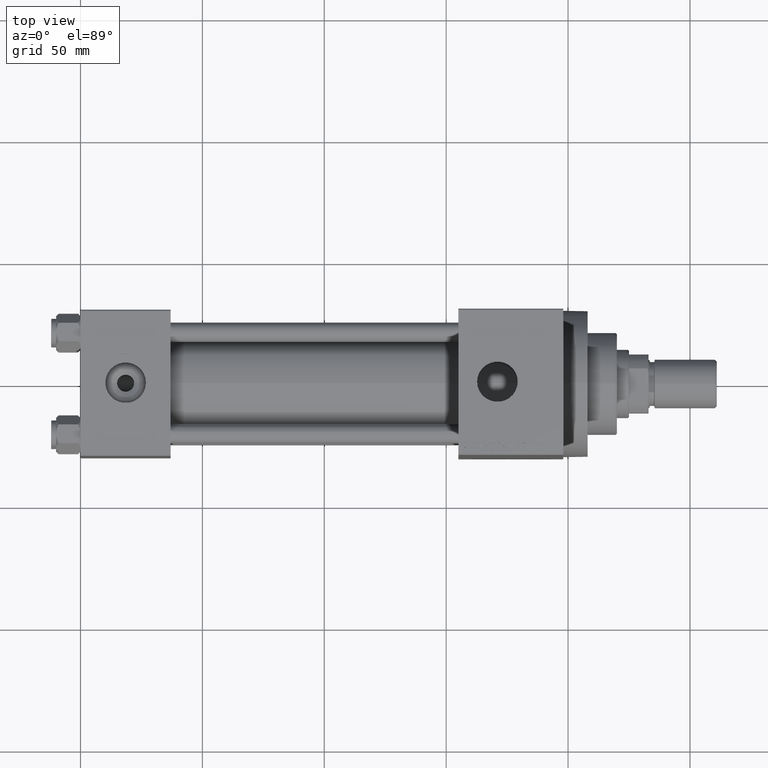
[diagram: clean part render]
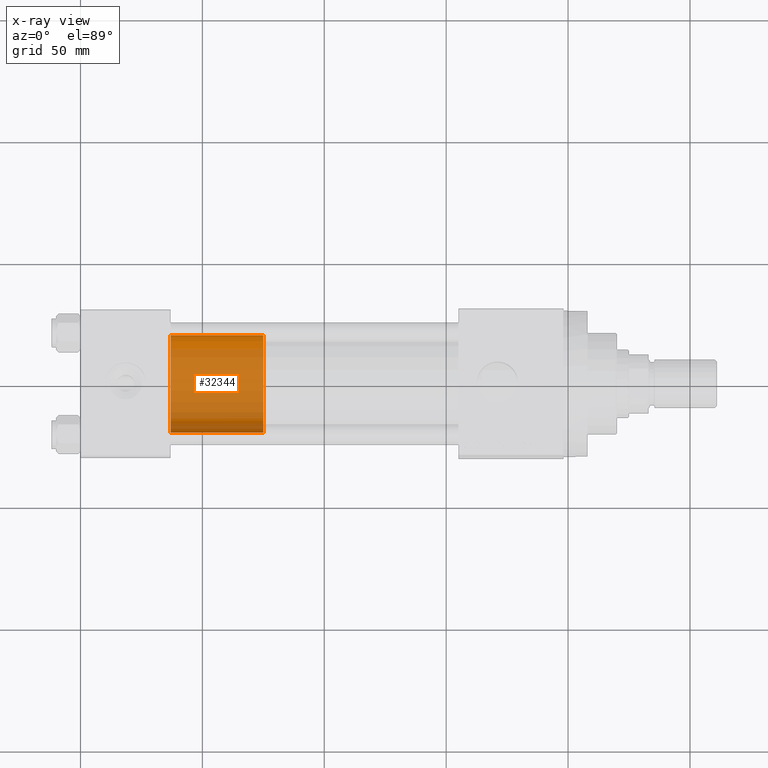
[diagram: x-ray — body ghosted, one internal face saturated and labeled with its STEP entity id]
A machine part, top view, then the same camera in x-ray: the body is ghosted and one INTERNAL B-rep face — a face not visible from any outside direction — is saturated and labeled: STEP entity #32344.
In plain terms, the highlighted cylindrical surface (partial cylindrical patch) has radius 20 mm, axis along (-1, 0, 0).
Its self-contained STEP definition (entity closure, byte-faithful):
#40 = DIRECTION ( 'NONE',  ( -1.000000000000000000, 0.000000000000000000, 0.000000000000000000 ) ) ;
#286 = CARTESIAN_POINT ( 'NONE',  ( 0.000000000000000000, 0.000000000000000000, 38.00000000000000000 ) ) ;
#2176 = DIRECTION ( 'NONE',  ( -0.000000000000000000, -0.000000000000000000, -1.000000000000000000 ) ) ;
#5556 = CARTESIAN_POINT ( 'NONE',  ( 20.00000000000000000, 2.449293598294706513E-15, 38.00000000000000000 ) ) ;
#6291 = VERTEX_POINT ( 'NONE', #23327 ) ;
#6801 = CYLINDRICAL_SURFACE ( 'NONE', #12475, 20.00000000000000000 ) ;
#7235 = CARTESIAN_POINT ( 'NONE',  ( -20.00000000000000000, 0.000000000000000000, 38.00000000000000000 ) ) ;
#7510 = DIRECTION ( 'NONE',  ( 1.000000000000000000, 0.000000000000000000, 0.000000000000000000 ) ) ;
#9740 = VERTEX_POINT ( 'NONE', #7235 ) ;
#10977 = CARTESIAN_POINT ( 'NONE',  ( -20.00000000000000000, 0.000000000000000000, 38.00000000000000000 ) ) ;
#12475 = AXIS2_PLACEMENT_3D ( 'NONE', #286, #44910, #40 ) ;
#13436 = ORIENTED_EDGE ( 'NONE', *, *, #41051, .F. ) ;
#13734 = VERTEX_POINT ( 'NONE', #36329 ) ;
#14108 = EDGE_CURVE ( 'NONE', #9740, #6291, #33139, .T. ) ;
#15408 = ORIENTED_EDGE ( 'NONE', *, *, #43928, .T. ) ;
#16606 = LINE ( 'NONE', #5556, #47706 ) ;
#17819 = ORIENTED_EDGE ( 'NONE', *, *, #42937, .T. ) ;
#19856 = AXIS2_PLACEMENT_3D ( 'NONE', #23827, #38570, #24068 ) ;
#19924 = AXIS2_PLACEMENT_3D ( 'NONE', #29186, #22415, #7510 ) ;
#20689 = CARTESIAN_POINT ( 'NONE',  ( 20.00000000000000000, 2.449293598294706513E-15, 38.00000000000000000 ) ) ;
#21193 = VERTEX_POINT ( 'NONE', #20689 ) ;
#22415 = DIRECTION ( 'NONE',  ( 0.000000000000000000, 0.000000000000000000, 1.000000000000000000 ) ) ;
#23327 = CARTESIAN_POINT ( 'NONE',  ( -20.00000000000000000, 0.000000000000000000, 0.000000000000000000 ) ) ;
#23827 = CARTESIAN_POINT ( 'NONE',  ( 0.000000000000000000, 0.000000000000000000, 38.00000000000000000 ) ) ;
#24068 = DIRECTION ( 'NONE',  ( 1.000000000000000000, 0.000000000000000000, 0.000000000000000000 ) ) ;
#28484 = ORIENTED_EDGE ( 'NONE', *, *, #14108, .F. ) ;
#29186 = CARTESIAN_POINT ( 'NONE',  ( 0.000000000000000000, 0.000000000000000000, 0.000000000000000000 ) ) ;
#32258 = CIRCLE ( 'NONE', #19924, 20.00000000000000000 ) ;
#32344 = ADVANCED_FACE ( 'NONE', ( #39826 ), #6801, .T. ) ;
#33139 = LINE ( 'NONE', #10977, #38216 ) ;
#34510 = CIRCLE ( 'NONE', #19856, 20.00000000000000000 ) ;
#36329 = CARTESIAN_POINT ( 'NONE',  ( 20.00000000000000000, 2.449293598294706513E-15, 0.000000000000000000 ) ) ;
#37468 = DIRECTION ( 'NONE',  ( -0.000000000000000000, -0.000000000000000000, -1.000000000000000000 ) ) ;
#38216 = VECTOR ( 'NONE', #37468, 1000.000000000000000 ) ;
#38570 = DIRECTION ( 'NONE',  ( 0.000000000000000000, 0.000000000000000000, 1.000000000000000000 ) ) ;
#39826 = FACE_OUTER_BOUND ( 'NONE', #40036, .T. ) ;
#40036 = EDGE_LOOP ( 'NONE', ( #13436, #15408, #17819, #28484 ) ) ;
#41051 = EDGE_CURVE ( 'NONE', #21193, #9740, #34510, .T. ) ;
#42937 = EDGE_CURVE ( 'NONE', #13734, #6291, #32258, .T. ) ;
#43928 = EDGE_CURVE ( 'NONE', #21193, #13734, #16606, .T. ) ;
#44910 = DIRECTION ( 'NONE',  ( -0.000000000000000000, -0.000000000000000000, -1.000000000000000000 ) ) ;
#47706 = VECTOR ( 'NONE', #2176, 1000.000000000000000 ) ;